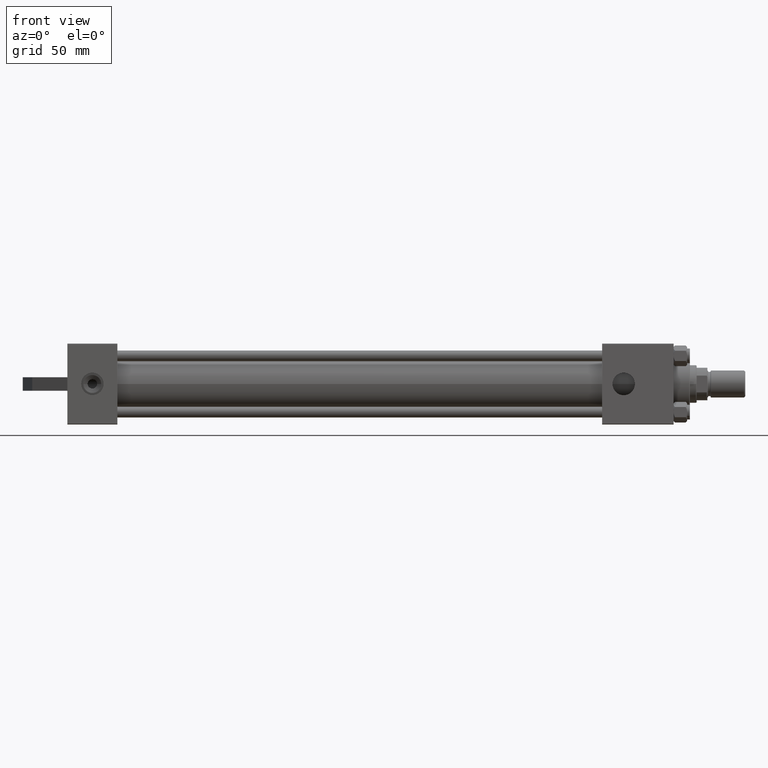
[diagram: clean part render]
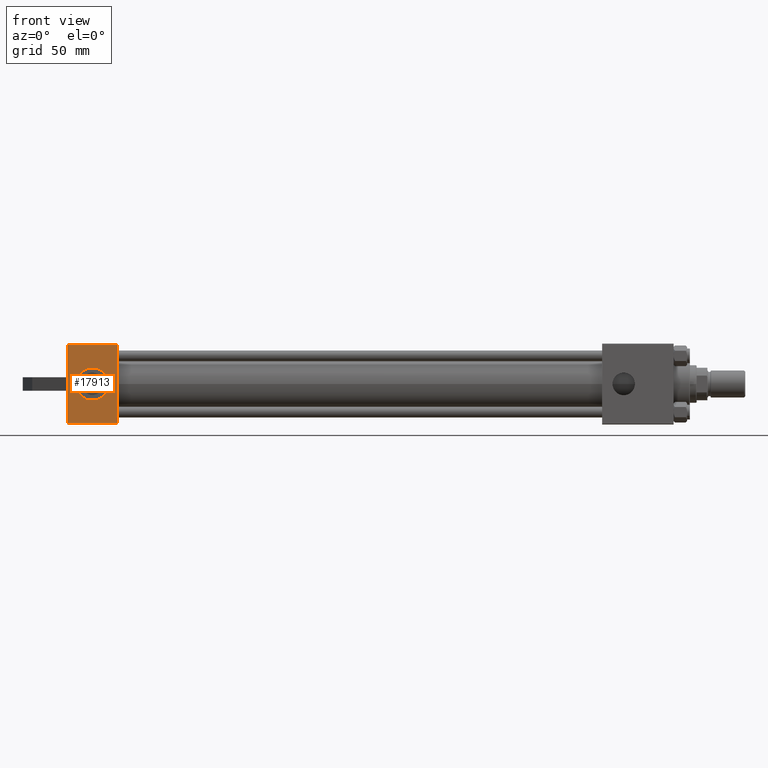
[diagram: same view with one face highlighted and labeled with its STEP entity id]
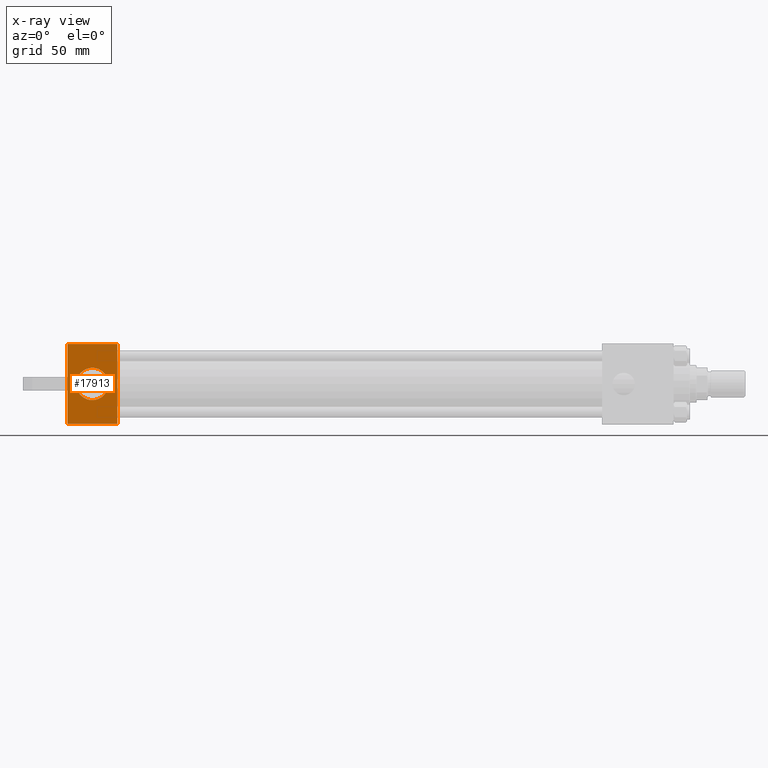
[diagram: x-ray of the same camera — body ghosted, the highlighted face saturated]
A machine part, front view. The second image highlights one B-rep face of the part: STEP entity #17913.
The next image is the same camera in x-ray: the body ghosted, the highlighted face saturated — about 0% of this face is hidden behind the body in this view.
In plain terms, the highlighted planar face has unit normal (-0, 1, 0).
Its self-contained STEP definition (entity closure, byte-faithful):
#384 = ORIENTED_EDGE ( 'NONE', *, *, #39841, .F. ) ;
#1024 = CARTESIAN_POINT ( 'NONE',  ( 37.00000000000000000, 29.49999999999999289, 30.00000000000000000 ) ) ;
#1195 = ORIENTED_EDGE ( 'NONE', *, *, #35212, .F. ) ;
#1979 = DIRECTION ( 'NONE',  ( -1.000000000000000000, 0.000000000000000000, 0.000000000000000000 ) ) ;
#2819 = EDGE_CURVE ( 'NONE', #29711, #43758, #2931, .T. ) ;
#2931 = LINE ( 'NONE', #17288, #35652 ) ;
#3206 = CARTESIAN_POINT ( 'NONE',  ( 18.50000000000000000, -3.469446951953614978E-15, 29.99999999999999645 ) ) ;
#4194 = LINE ( 'NONE', #10798, #11547 ) ;
#4667 = EDGE_CURVE ( 'NONE', #29711, #26134, #44089, .T. ) ;
#4754 = ORIENTED_EDGE ( 'NONE', *, *, #29457, .T. ) ;
#5745 = CARTESIAN_POINT ( 'NONE',  ( 0.000000000000000000, 29.49999999999999289, 30.00000000000000000 ) ) ;
#7606 = VECTOR ( 'NONE', #27619, 1000.000000000000000 ) ;
#8361 = DIRECTION ( 'NONE',  ( 0.000000000000000000, -1.000000000000000000, -1.156482317317871725E-16 ) ) ;
#8793 = DIRECTION ( 'NONE',  ( 1.000000000000000000, 0.000000000000000000, 0.000000000000000000 ) ) ;
#9006 = EDGE_LOOP ( 'NONE', ( #14587, #39732, #43497, #4754, #29707, #24698 ) ) ;
#10798 = CARTESIAN_POINT ( 'NONE',  ( 37.00000000000000000, -29.50000000000000000, 29.99999999999999289 ) ) ;
#11098 = CARTESIAN_POINT ( 'NONE',  ( 37.00000000000000000, 29.99999999999999289, 30.00000000000000000 ) ) ;
#11547 = VECTOR ( 'NONE', #32888, 1000.000000000000000 ) ;
#12592 = VERTEX_POINT ( 'NONE', #23676 ) ;
#12598 = CARTESIAN_POINT ( 'NONE',  ( 0.000000000000000000, -5.000000000000000000, 29.99999999999999289 ) ) ;
#13688 = EDGE_CURVE ( 'NONE', #26134, #25572, #15896, .T. ) ;
#14037 = CIRCLE ( 'NONE', #23786, 12.00000000000000000 ) ;
#14587 = ORIENTED_EDGE ( 'NONE', *, *, #13688, .T. ) ;
#15132 = CARTESIAN_POINT ( 'NONE',  ( 30.50000000000000000, -3.469446951953614978E-15, 29.99999999999999645 ) ) ;
#15896 = LINE ( 'NONE', #22478, #18660 ) ;
#17034 = VERTEX_POINT ( 'NONE', #32467 ) ;
#17288 = CARTESIAN_POINT ( 'NONE',  ( 37.00000000000000000, 29.99999999999999289, 30.00000000000000000 ) ) ;
#17721 = EDGE_CURVE ( 'NONE', #17034, #12592, #18722, .T. ) ;
#17913 = ADVANCED_FACE ( 'NONE', ( #22137, #36476 ), #32474, .F. ) ;
#18660 = VECTOR ( 'NONE', #8361, 1000.000000000000000 ) ;
#18722 = LINE ( 'NONE', #40360, #25545 ) ;
#18870 = EDGE_LOOP ( 'NONE', ( #384, #1195 ) ) ;
#19997 = VECTOR ( 'NONE', #1979, 1000.000000000000000 ) ;
#21127 = EDGE_CURVE ( 'NONE', #17034, #25572, #34434, .T. ) ;
#21445 = DIRECTION ( 'NONE',  ( 0.000000000000000000, 1.000000000000000000, 1.156482317317871725E-16 ) ) ;
#22137 = FACE_BOUND ( 'NONE', #18870, .T. ) ;
#22478 = CARTESIAN_POINT ( 'NONE',  ( 0.000000000000000000, 29.99999999999999289, 30.00000000000000000 ) ) ;
#23676 = CARTESIAN_POINT ( 'NONE',  ( 0.000000000000000000, -29.49999999999998579, 29.99999999999999289 ) ) ;
#23786 = AXIS2_PLACEMENT_3D ( 'NONE', #26652, #40994, #8793 ) ;
#24698 = ORIENTED_EDGE ( 'NONE', *, *, #4667, .T. ) ;
#25328 = CARTESIAN_POINT ( 'NONE',  ( 0.000000000000000000, 5.000000000000000000, 29.99999999999999289 ) ) ;
#25433 = CARTESIAN_POINT ( 'NONE',  ( 6.499999999999997335, -1.999870792976790833E-15, 29.99999999999999645 ) ) ;
#25545 = VECTOR ( 'NONE', #36601, 1000.000000000000000 ) ;
#25572 = VERTEX_POINT ( 'NONE', #25328 ) ;
#26134 = VERTEX_POINT ( 'NONE', #42386 ) ;
#26652 = CARTESIAN_POINT ( 'NONE',  ( 18.50000000000000000, -3.469446951953614978E-15, 29.99999999999999645 ) ) ;
#27619 = DIRECTION ( 'NONE',  ( 0.000000000000000000, 1.000000000000000000, 0.000000000000000000 ) ) ;
#28601 = DIRECTION ( 'NONE',  ( 0.000000000000000000, 0.000000000000000000, 1.000000000000000000 ) ) ;
#29008 = VERTEX_POINT ( 'NONE', #25433 ) ;
#29457 = EDGE_CURVE ( 'NONE', #12592, #43758, #4194, .T. ) ;
#29707 = ORIENTED_EDGE ( 'NONE', *, *, #2819, .F. ) ;
#29711 = VERTEX_POINT ( 'NONE', #1024 ) ;
#32467 = CARTESIAN_POINT ( 'NONE',  ( 0.000000000000000000, -5.000000000000000000, 29.99999999999999289 ) ) ;
#32474 = PLANE ( 'NONE',  #37566 ) ;
#32888 = DIRECTION ( 'NONE',  ( 1.000000000000000000, 0.000000000000000000, 0.000000000000000000 ) ) ;
#34434 = LINE ( 'NONE', #12598, #7606 ) ;
#35212 = EDGE_CURVE ( 'NONE', #29008, #44450, #38758, .T. ) ;
#35383 = DIRECTION ( 'NONE',  ( 0.000000000000000000, -1.000000000000000000, -1.156482317317871725E-16 ) ) ;
#35652 = VECTOR ( 'NONE', #35383, 1000.000000000000000 ) ;
#36006 = DIRECTION ( 'NONE',  ( 0.000000000000000000, 1.156482317317871725E-16, -1.000000000000000000 ) ) ;
#36476 = FACE_OUTER_BOUND ( 'NONE', #9006, .T. ) ;
#36601 = DIRECTION ( 'NONE',  ( 0.000000000000000000, -1.000000000000000000, -1.156482317317871725E-16 ) ) ;
#37566 = AXIS2_PLACEMENT_3D ( 'NONE', #11098, #36006, #21445 ) ;
#38758 = CIRCLE ( 'NONE', #46240, 12.00000000000000000 ) ;
#39732 = ORIENTED_EDGE ( 'NONE', *, *, #21127, .F. ) ;
#39841 = EDGE_CURVE ( 'NONE', #44450, #29008, #14037, .T. ) ;
#40360 = CARTESIAN_POINT ( 'NONE',  ( 0.000000000000000000, 29.99999999999999289, 30.00000000000000000 ) ) ;
#40994 = DIRECTION ( 'NONE',  ( 0.000000000000000000, 0.000000000000000000, 1.000000000000000000 ) ) ;
#42386 = CARTESIAN_POINT ( 'NONE',  ( 0.000000000000000000, 29.49999999999999289, 30.00000000000000000 ) ) ;
#42948 = DIRECTION ( 'NONE',  ( 1.000000000000000000, 0.000000000000000000, 0.000000000000000000 ) ) ;
#43214 = CARTESIAN_POINT ( 'NONE',  ( 37.00000000000000000, -29.49999999999998579, 29.99999999999999289 ) ) ;
#43497 = ORIENTED_EDGE ( 'NONE', *, *, #17721, .T. ) ;
#43758 = VERTEX_POINT ( 'NONE', #43214 ) ;
#44089 = LINE ( 'NONE', #5745, #19997 ) ;
#44450 = VERTEX_POINT ( 'NONE', #15132 ) ;
#46240 = AXIS2_PLACEMENT_3D ( 'NONE', #3206, #28601, #42948 ) ;